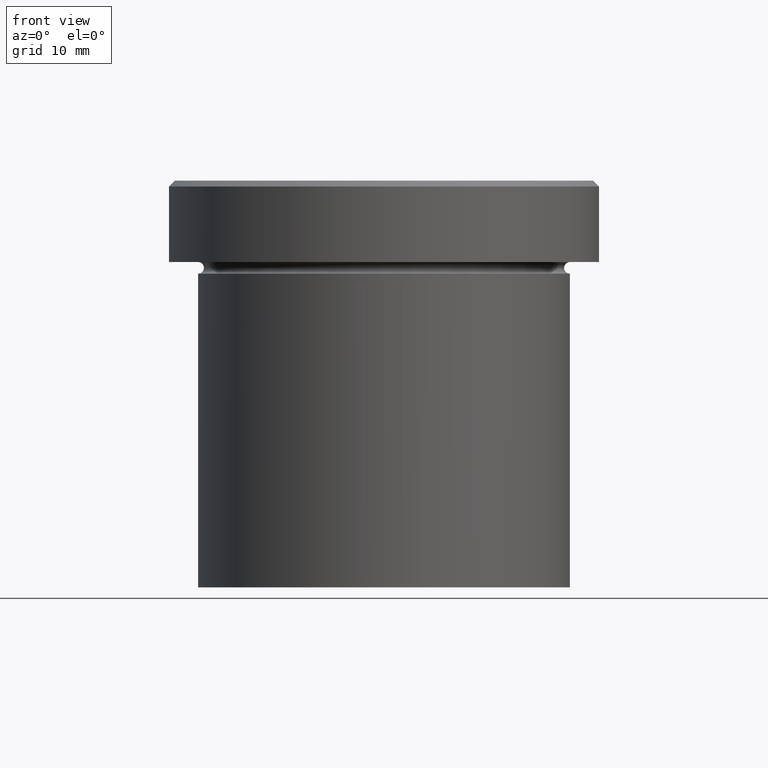
[diagram: clean part render]
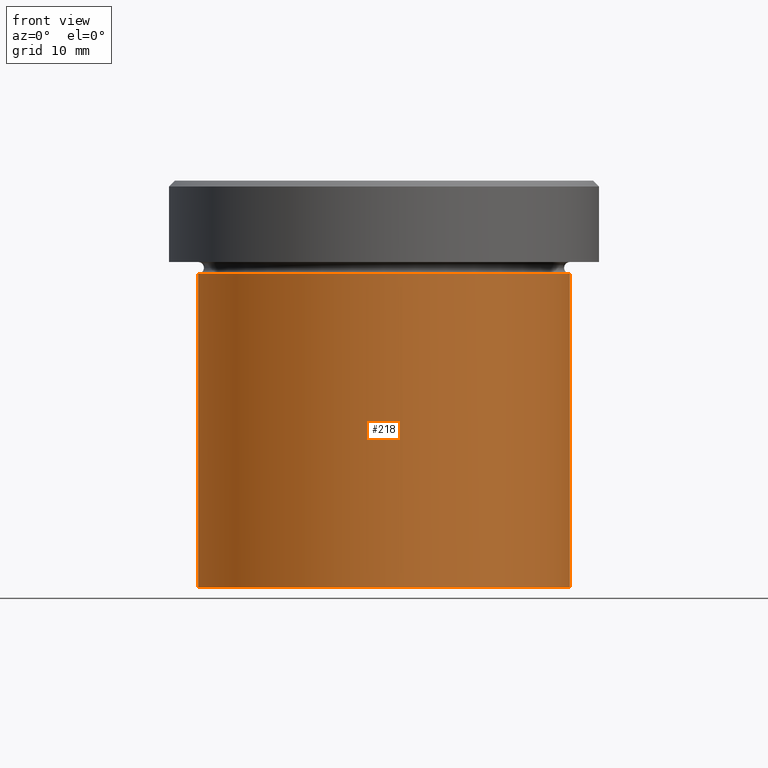
[diagram: same view with one face highlighted and labeled with its STEP entity id]
A machine part, front view. The second image highlights one B-rep face of the part: STEP entity #218.
In plain terms, the highlighted cylindrical surface (partial cylindrical patch) has radius 16 mm, axis along (-0, -0, 1).
Its self-contained STEP definition (entity closure, byte-faithful):
#8 = EDGE_CURVE ( 'NONE', #229, #10, #128, .T. ) ;
#10 = VERTEX_POINT ( 'NONE', #344 ) ;
#13 = VERTEX_POINT ( 'NONE', #191 ) ;
#17 = ORIENTED_EDGE ( 'NONE', *, *, #8, .F. ) ;
#18 = FACE_OUTER_BOUND ( 'NONE', #24, .T. ) ;
#22 = CARTESIAN_POINT ( 'NONE',  ( 0.000000000000000000, 0.000000000000000000, -35.00000000000000000 ) ) ;
#24 = EDGE_LOOP ( 'NONE', ( #267, #326, #330, #17 ) ) ;
#53 = AXIS2_PLACEMENT_3D ( 'NONE', #117, #376, #215 ) ;
#79 = EDGE_CURVE ( 'NONE', #230, #229, #356, .T. ) ;
#108 = VECTOR ( 'NONE', #282, 1000.000000000000000 ) ;
#110 = CYLINDRICAL_SURFACE ( 'NONE', #142, 16.00000000000000000 ) ;
#117 = CARTESIAN_POINT ( 'NONE',  ( 0.000000000000000000, 0.000000000000000000, -8.000000000000000000 ) ) ;
#128 = CIRCLE ( 'NONE', #53, 16.00000000000000000 ) ;
#142 = AXIS2_PLACEMENT_3D ( 'NONE', #146, #237, #335 ) ;
#146 = CARTESIAN_POINT ( 'NONE',  ( 0.000000000000000000, 0.000000000000000000, 0.000000000000000000 ) ) ;
#149 = DIRECTION ( 'NONE',  ( 1.000000000000000000, 0.000000000000000000, 0.000000000000000000 ) ) ;
#151 = AXIS2_PLACEMENT_3D ( 'NONE', #22, #401, #149 ) ;
#152 = CARTESIAN_POINT ( 'NONE',  ( -16.00000000000000000, 1.959434878635765131E-15, -8.000000000000000000 ) ) ;
#169 = EDGE_CURVE ( 'NONE', #230, #13, #327, .T. ) ;
#191 = CARTESIAN_POINT ( 'NONE',  ( 16.00000000000000000, 0.000000000000000000, -35.00000000000000000 ) ) ;
#215 = DIRECTION ( 'NONE',  ( 1.000000000000000000, 0.000000000000000000, 0.000000000000000000 ) ) ;
#218 = ADVANCED_FACE ( 'NONE', ( #18 ), #110, .T. ) ;
#221 = LINE ( 'NONE', #311, #108 ) ;
#229 = VERTEX_POINT ( 'NONE', #152 ) ;
#230 = VERTEX_POINT ( 'NONE', #375 ) ;
#237 = DIRECTION ( 'NONE',  ( -0.000000000000000000, -0.000000000000000000, 1.000000000000000000 ) ) ;
#245 = CARTESIAN_POINT ( 'NONE',  ( -16.00000000000000000, 1.959434878635765131E-15, 0.000000000000000000 ) ) ;
#263 = EDGE_CURVE ( 'NONE', #13, #10, #221, .T. ) ;
#267 = ORIENTED_EDGE ( 'NONE', *, *, #79, .F. ) ;
#282 = DIRECTION ( 'NONE',  ( -0.000000000000000000, -0.000000000000000000, 1.000000000000000000 ) ) ;
#311 = CARTESIAN_POINT ( 'NONE',  ( 16.00000000000000000, 0.000000000000000000, 0.000000000000000000 ) ) ;
#326 = ORIENTED_EDGE ( 'NONE', *, *, #169, .T. ) ;
#327 = CIRCLE ( 'NONE', #151, 16.00000000000000000 ) ;
#330 = ORIENTED_EDGE ( 'NONE', *, *, #263, .T. ) ;
#335 = DIRECTION ( 'NONE',  ( 1.000000000000000000, 0.000000000000000000, 0.000000000000000000 ) ) ;
#344 = CARTESIAN_POINT ( 'NONE',  ( 16.00000000000000000, 0.000000000000000000, -8.000000000000000000 ) ) ;
#356 = LINE ( 'NONE', #245, #370 ) ;
#370 = VECTOR ( 'NONE', #379, 1000.000000000000000 ) ;
#375 = CARTESIAN_POINT ( 'NONE',  ( -16.00000000000000000, 1.959434878635765131E-15, -35.00000000000000000 ) ) ;
#376 = DIRECTION ( 'NONE',  ( -0.000000000000000000, -0.000000000000000000, 1.000000000000000000 ) ) ;
#379 = DIRECTION ( 'NONE',  ( -0.000000000000000000, -0.000000000000000000, 1.000000000000000000 ) ) ;
#401 = DIRECTION ( 'NONE',  ( -0.000000000000000000, -0.000000000000000000, 1.000000000000000000 ) ) ;